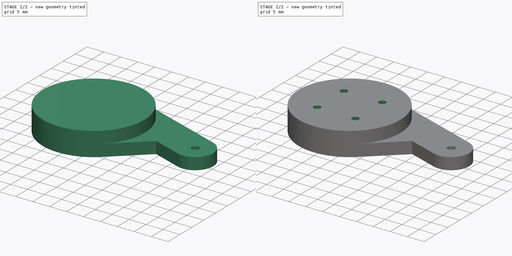
[diagram: build sequence overview — one tinted view per stage of 2, left to right]
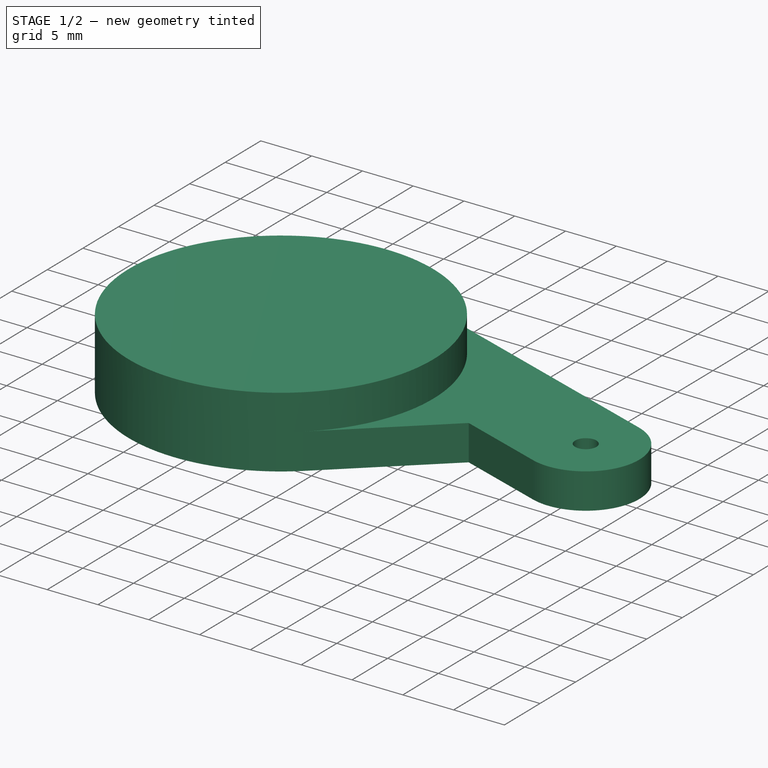
[diagram: stage 1 of 2 — iso view after this stage's code; geometry added in this stage tinted green]
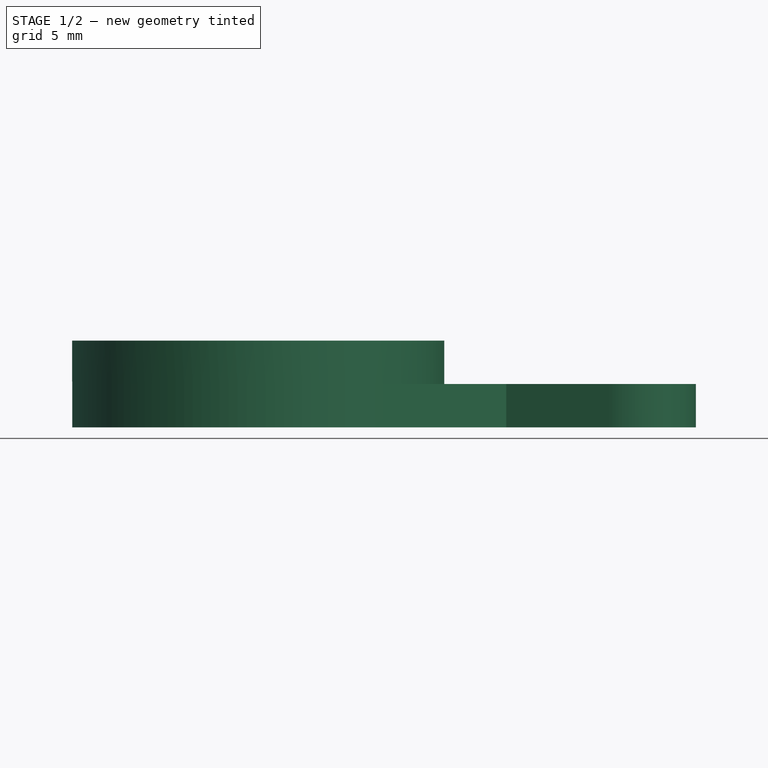
[diagram: stage 1 of 2 — front view after this stage's code; geometry added in this stage tinted green]
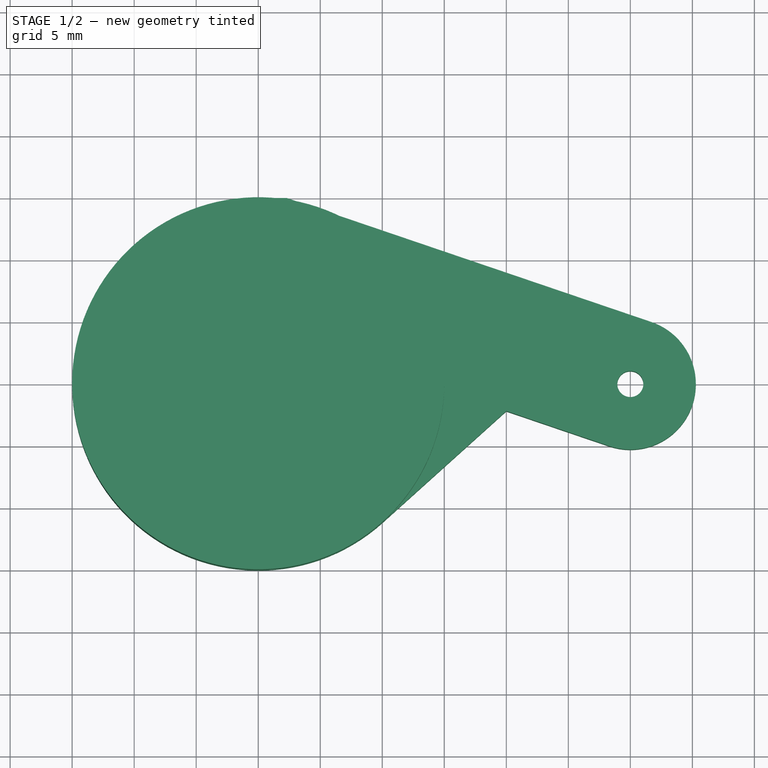
[diagram: stage 1 of 2 — top view after this stage's code; geometry added in this stage tinted green]
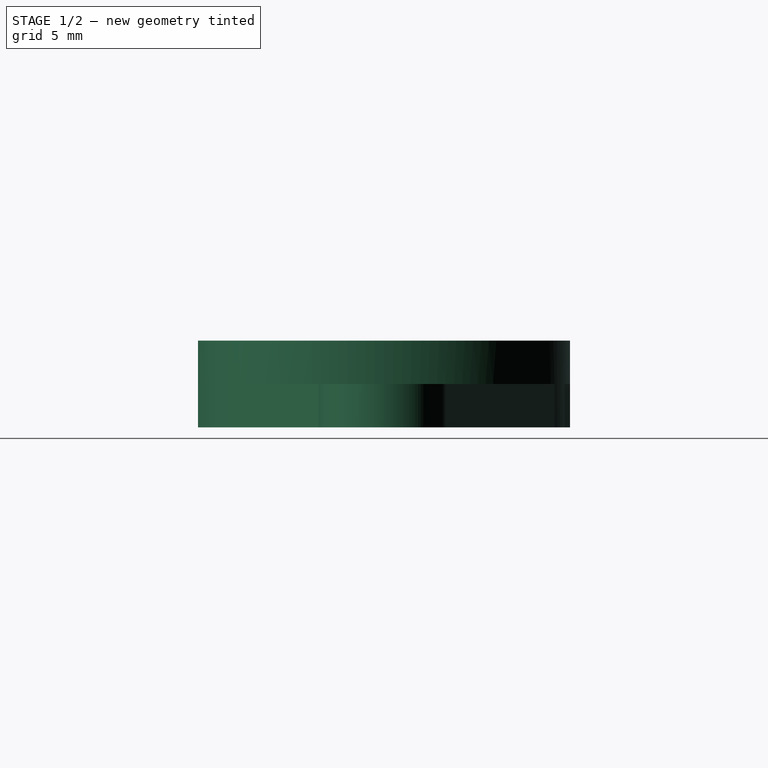
[diagram: stage 1 of 2 — right view after this stage's code; geometry added in this stage tinted green]
FCSTD DOCUMENT  (FreeCAD 0.21R33668 +7 (Git))
Label: 4_Arms_Lever_R
License: All rights reserved
LicenseURL: http://en.wikipedia.org/wiki/All_rights_reserved
objects: Sketcher::SketchObject×3, PartDesign::Pad×2, PartDesign::Pocket×1, PartDesign::Body×1
note: 10 computed .brp shape members not serialized (recipe doc carries the construction recipe); baked Part::Feature solids carry a one-line shape summary decoded from their .brp

FEATURE [Sketcher::SketchObject] Sketch
  FullyConstrained = true
  MapMode = 5
  Support = -> [XY_Plane]
  sketch-geometry (7):
    g0: ArcOfCircle CenterX=0 CenterY=0 CenterZ=0 NormalX=0 NormalY=0 NormalZ=1 AngleXU=0 Radius=15 StartAngle=1.5708 EndAngle=5.44543
    g1: LineSegment StartX=-2.4e-15 StartY=15 StartZ=0 EndX=2.31027 EndY=15 EndZ=0
    g2: LineSegment StartX=10.037 StartY=-11.1472 StartZ=0 EndX=20 EndY=-2.17641 EndZ=0
    g3: LineSegment StartX=2.31027 StartY=15 StartZ=0 EndX=31.7012 EndY=5 EndZ=0
    g4: LineSegment StartX=20 StartY=-2.17641 StartZ=0 EndX=28.2988 EndY=-5 EndZ=0
    g5: ArcOfCircle CenterX=30 CenterY=0 CenterZ=0 NormalX=0 NormalY=0 NormalZ=1 AngleXU=0 Radius=5.28149 StartAngle=4.38443 EndAngle=7.52603
    g6: Circle CenterX=30 CenterY=0 CenterZ=0 NormalX=0 NormalY=0 NormalZ=1 AngleXU=0 Radius=1.05
  constraints (17):
    c: Coincident(g0,g-1)
    c: Coincident(g3,g1)
    c: Coincident(g4,g2)
    c: Tangent(g0,g2) = -1.5708
    c: Tangent(g0,g1) = 1.5708
    c: Diameter(g0) = 30
    c: DistanceX(g0,g2) = 20
    c: DistanceY(g4,g3) = 10
    c: Tangent(g5,g3) = 1.5708
    c: Diameter(g6) = 2.1
    c: Coincident(g6,g5)
    c: Tangent(g5,g4) = -1.5708
    c: Parallel(g3,g4)
    c: Horizontal(g1)
    c: PointOnObject(g5,g-1)
    c: DistanceX(g0,g5) = 30
    c: Angle(g-1,g2) = 0.733038
FEATURE [PartDesign::Pad] Pad
  Direction = (0,0,1)
  Length = 3.5
  Length2 = 10
  Profile = -> Sketch
  ReferenceAxis = -> Sketch [N_Axis]
  Type = 0
FEATURE [Sketcher::SketchObject] Sketch001
  ExternalGeometry = -> [Pad]
  FullyConstrained = true
  MapMode = 5
  Support = -> [XY_Plane]
  sketch-geometry (1):
    g0: Circle CenterX=0 CenterY=0 CenterZ=0 NormalX=0 NormalY=0 NormalZ=1 AngleXU=0 Radius=15
  constraints (2):
    c: Equal(g0,g-3)
    c: Coincident(g0,g-3)
FEATURE [PartDesign::Pad] Pad001
  BaseFeature = -> Pad
  Direction = (0,0,1)
  Length = 7
  Length2 = 10
  Profile = -> Sketch001
  ReferenceAxis = -> Sketch001 [N_Axis]
  Type = 0
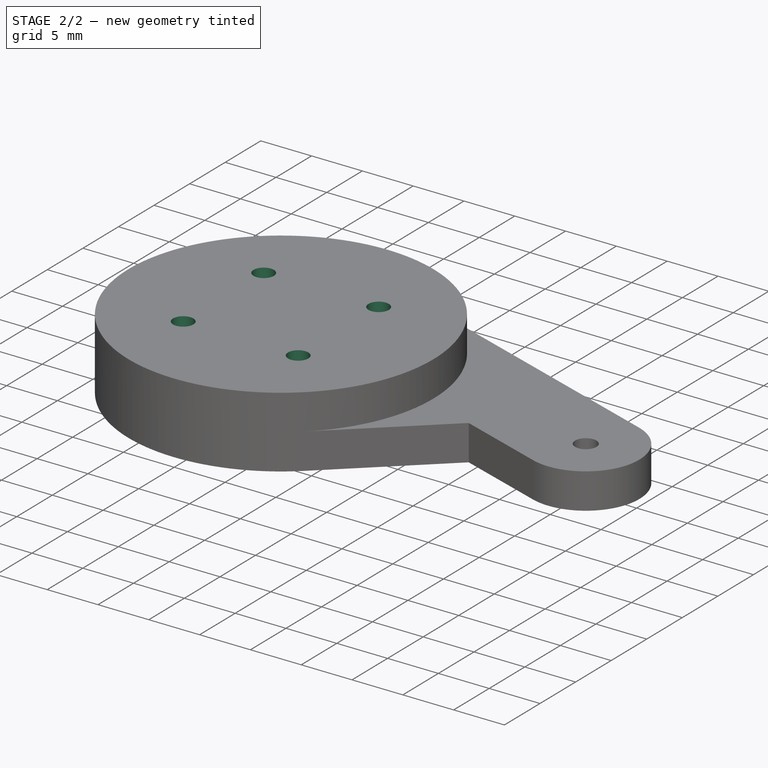
[diagram: stage 2 of 2 — iso view after this stage's code; geometry added in this stage tinted green]
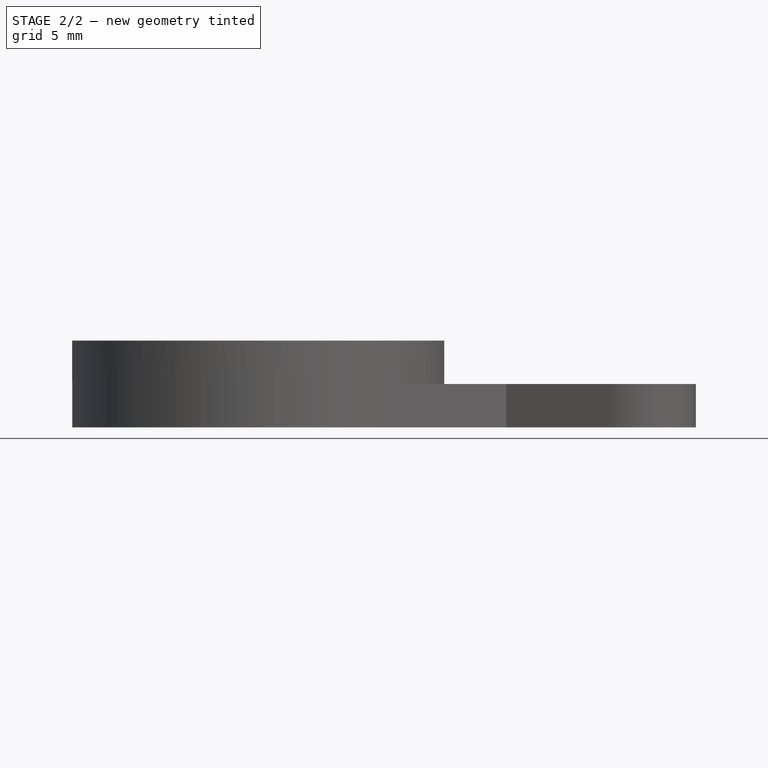
[diagram: stage 2 of 2 — front view after this stage's code; geometry added in this stage tinted green]
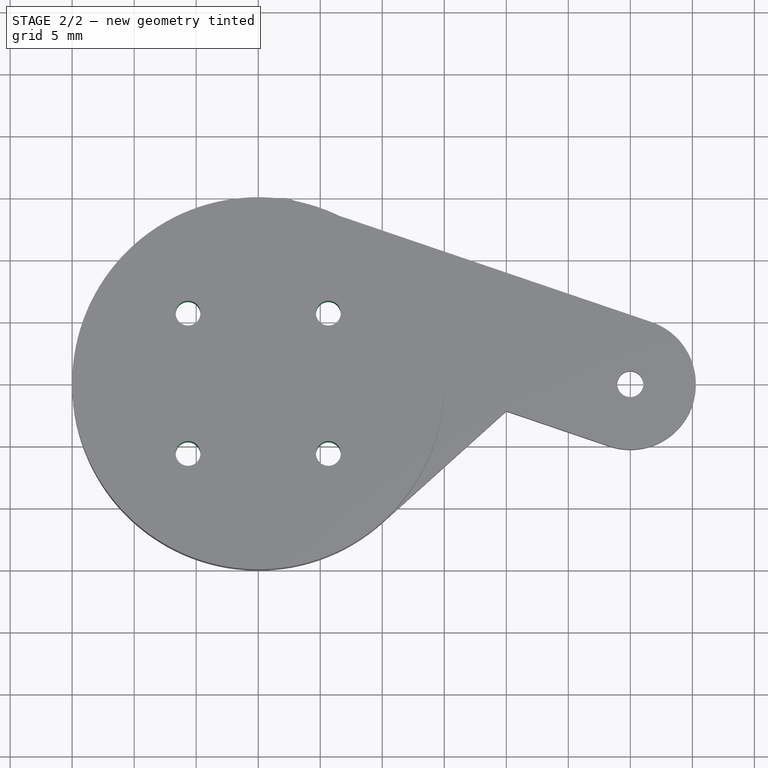
[diagram: stage 2 of 2 — top view after this stage's code; geometry added in this stage tinted green]
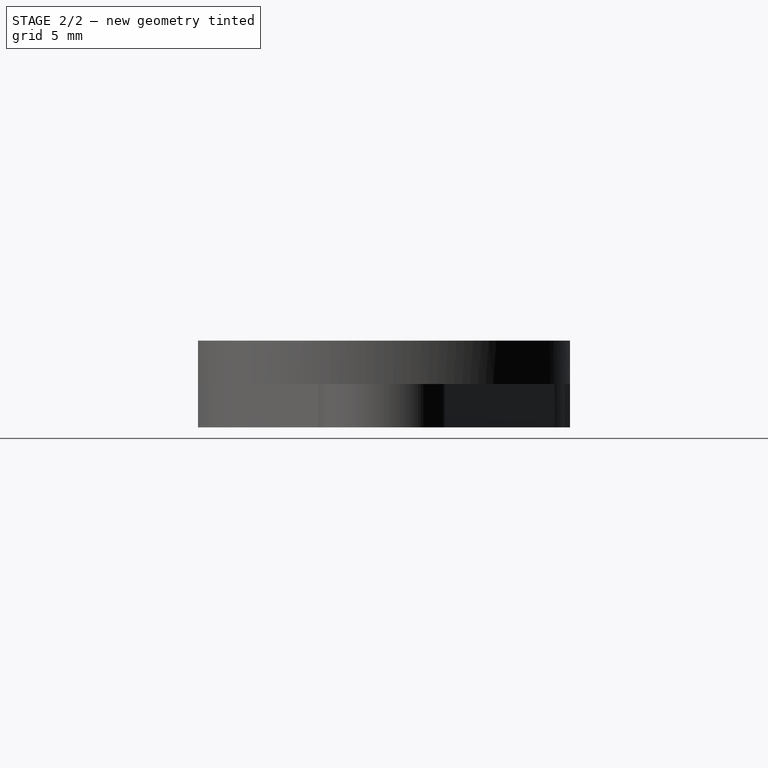
[diagram: stage 2 of 2 — right view after this stage's code; geometry added in this stage tinted green]
FEATURE [Sketcher::SketchObject] Sketch002
  FullyConstrained = true
  MapMode = 5
  Support = -> [XY_Plane]
  sketch-geometry (9):
    g0: LineSegment StartX=-5.65685 StartY=-5.65685 StartZ=0 EndX=-5.65685 EndY=5.65685 EndZ=0
    g1: LineSegment StartX=-5.65685 StartY=5.65685 StartZ=0 EndX=5.65685 EndY=5.65685 EndZ=0
    g2: LineSegment StartX=5.65685 StartY=5.65685 StartZ=0 EndX=5.65685 EndY=-5.65685 EndZ=0
    g3: LineSegment StartX=5.65685 StartY=-5.65685 StartZ=0 EndX=-5.65685 EndY=-5.65685 EndZ=0
    g4: GeomPoint X=0 Y=0 Z=0
    g5: Circle CenterX=-5.65685 CenterY=5.65685 CenterZ=0 NormalX=0 NormalY=0 NormalZ=1 AngleXU=0 Radius=1
    g6: Circle CenterX=5.65685 CenterY=5.65685 CenterZ=0 NormalX=0 NormalY=0 NormalZ=1 AngleXU=0 Radius=1
    g7: Circle CenterX=5.65685 CenterY=-5.65685 CenterZ=0 NormalX=0 NormalY=0 NormalZ=1 AngleXU=0 Radius=1
    g8: Circle CenterX=-5.65685 CenterY=-5.65685 CenterZ=0 NormalX=0 NormalY=0 NormalZ=1 AngleXU=0 Radius=1
  constraints (20):
    c: Coincident(g0,g1)
    c: Coincident(g1,g2)
    c: Coincident(g2,g3)
    c: Coincident(g3,g0)
    c: Horizontal(g1)
    c: Horizontal(g3)
    c: Vertical(g0)
    c: Vertical(g2)
    c: Symmetric(g1,g0,g4)
    c: Coincident(g4,g-1)
    c: Equal(g0,g1)
    c: Distance(g0,g1) = 16
    c: Equal(g5,g6)
    c: Equal(g6,g7)
    c: Equal(g7,g8)
    c: Diameter(g5) = 2
    c: Coincident(g7,g2)
    c: Coincident(g6,g1)
    c: Coincident(g5,g0)
    c: Coincident(g8,g0)
FEATURE [PartDesign::Pocket] Pocket
  BaseFeature = -> Pad001
  Direction = (0,0,-1)
  Length = 10
  Length2 = 5
  Profile = -> Sketch002
  ReferenceAxis = -> Sketch002 [N_Axis]
  Reversed = true
  Type = 0
FEATURE [PartDesign::Body] Body
  Group = -> [Sketch,Pad,Sketch001,Pad001,Sketch002,Pocket]
  Origin = -> Origin
  Tip = -> Pocket
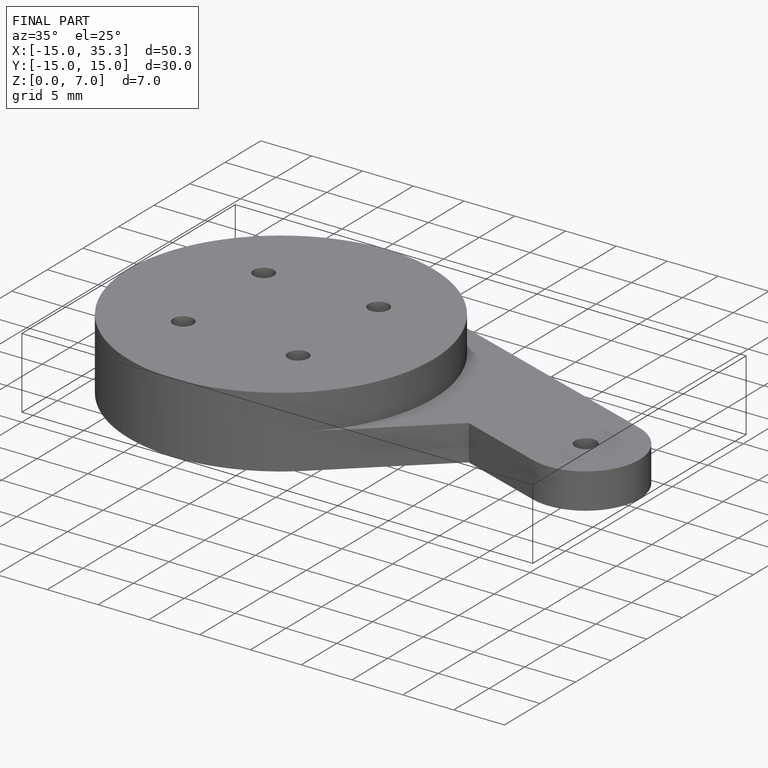
[diagram: finished part — iso view with bounding-box wireframe]
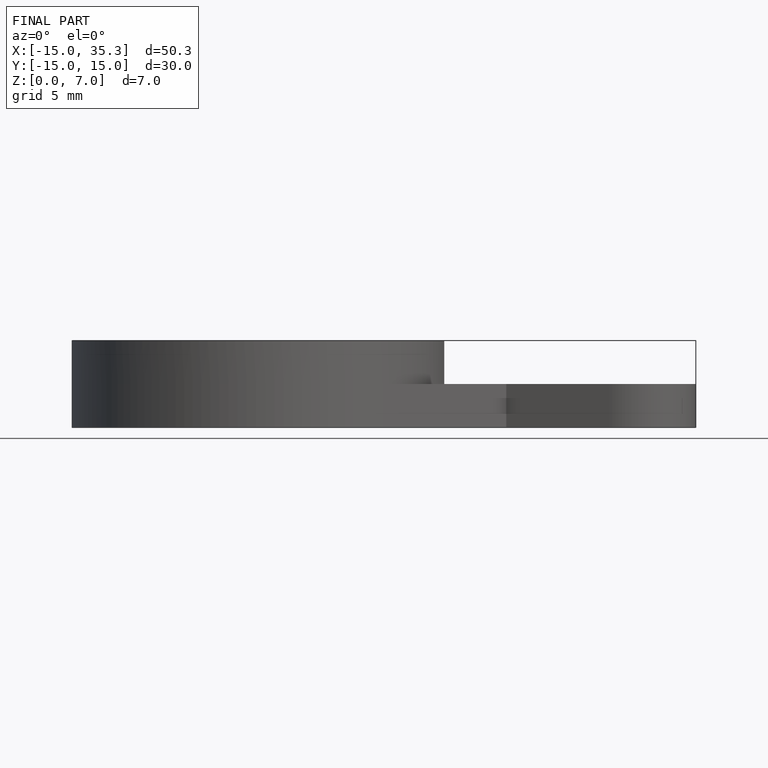
[diagram: finished part — front view with bounding-box wireframe]
